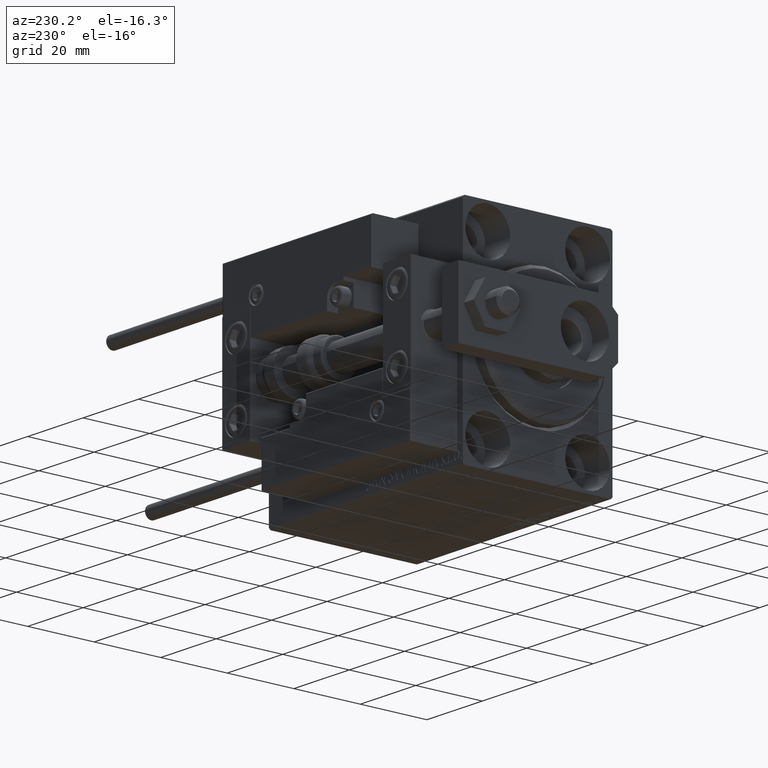
[diagram: clean part render]
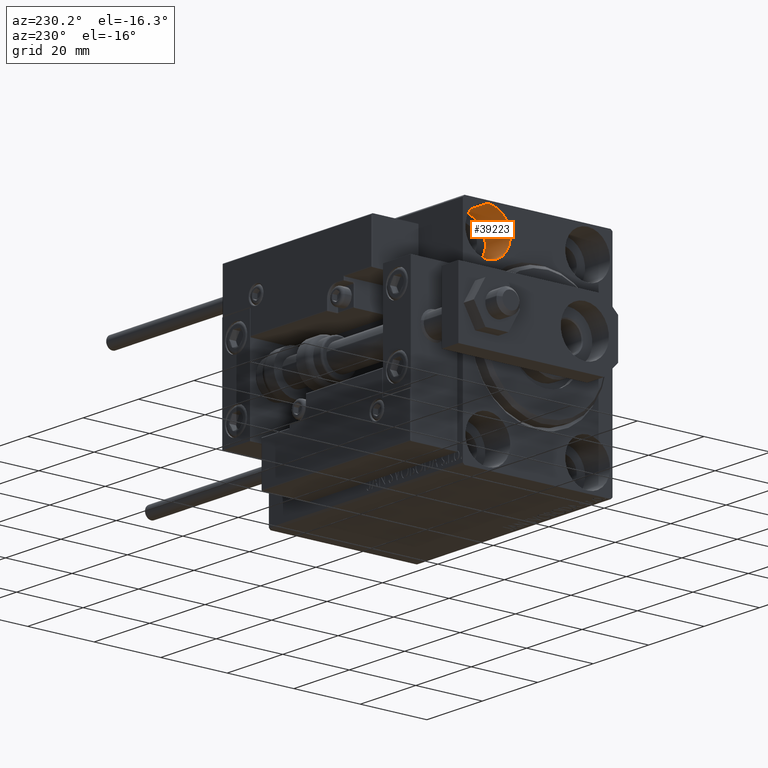
[diagram: same view with one face highlighted and labeled with its STEP entity id]
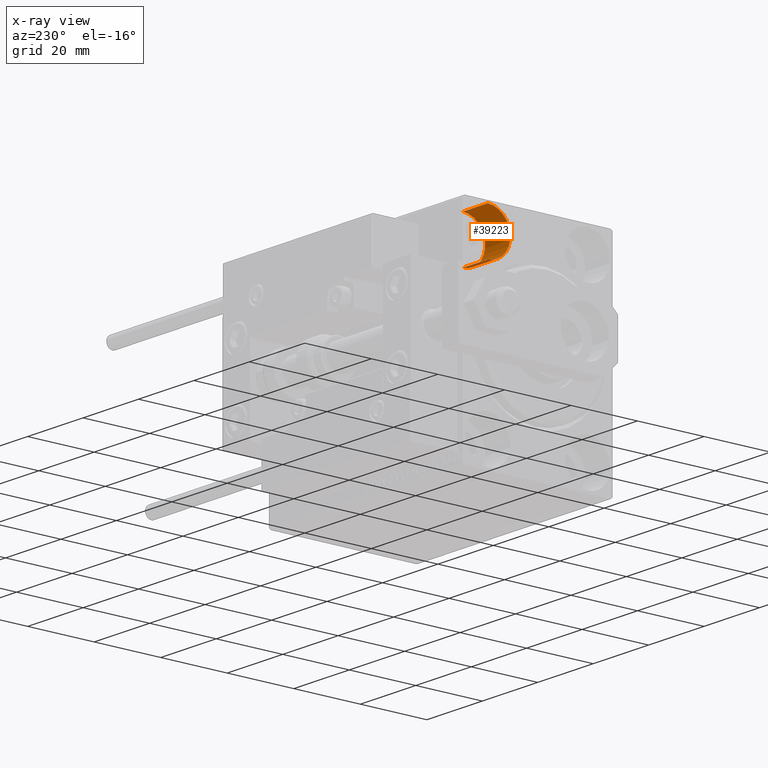
[diagram: x-ray of the same camera — body ghosted, the highlighted face saturated]
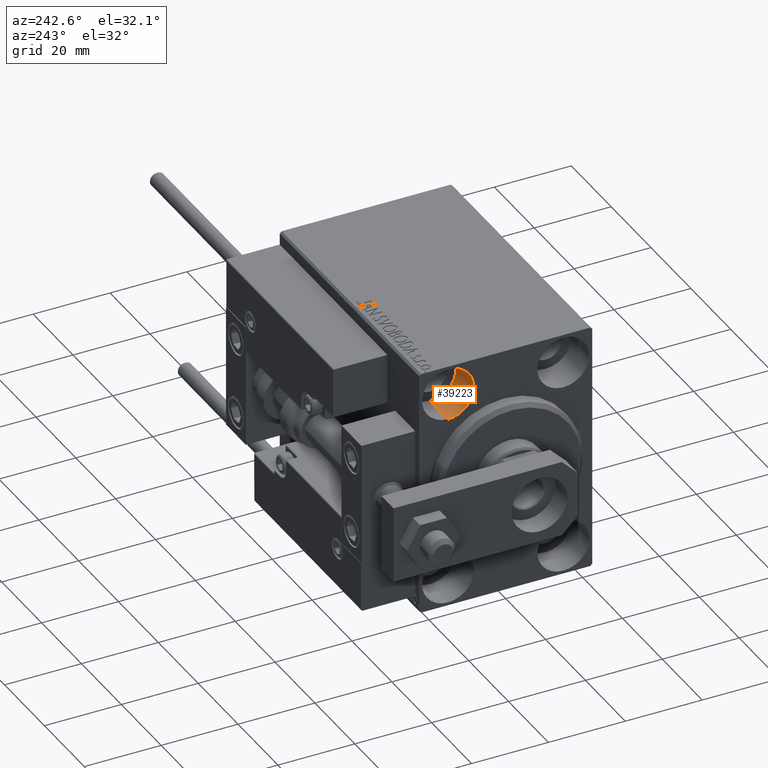
[diagram: same view with one face highlighted and labeled with its STEP entity id]
A machine part, auxiliary view. The second image highlights one B-rep face of the part: STEP entity #39223.
The next image is the same camera in x-ray: the body ghosted, the highlighted face saturated — about 2% of this face is hidden behind the body in this view.
A second angle (auxiliary view) of the same face is appended — the face is thin or edge-on in the first view.
In plain terms, the highlighted cylindrical surface (edge-blend (fillet) strip) has radius 6.75 mm, axis along (-1, -0, -0).
Its self-contained STEP definition (entity closure, byte-faithful):
#96 = DIRECTION ( 'NONE',  ( -1.000000000000000000, -0.000000000000000000, -0.000000000000000000 ) ) ;
#756 = CARTESIAN_POINT ( 'NONE',  ( 0.000000000000000000, 15.00000000000000355, 18.25000000000000355 ) ) ;
#1282 = EDGE_CURVE ( 'NONE', #44752, #24791, #27206, .T. ) ;
#1315 = EDGE_CURVE ( 'NONE', #31585, #44752, #20637, .T. ) ;
#4052 = AXIS2_PLACEMENT_3D ( 'NONE', #29662, #10417, #48947 ) ;
#7648 = ORIENTED_EDGE ( 'NONE', *, *, #26086, .T. ) ;
#9435 = AXIS2_PLACEMENT_3D ( 'NONE', #25455, #44479, #17591 ) ;
#10417 = DIRECTION ( 'NONE',  ( -1.000000000000000000, -0.000000000000000000, -0.000000000000000000 ) ) ;
#11104 = DIRECTION ( 'NONE',  ( -1.000000000000000000, -0.000000000000000000, -0.000000000000000000 ) ) ;
#11741 = DIRECTION ( 'NONE',  ( 0.000000000000000000, 0.000000000000000000, 1.000000000000000000 ) ) ;
#15559 = CARTESIAN_POINT ( 'NONE',  ( 9.000000000000000000, 15.00000000000000355, 25.00000000000000000 ) ) ;
#17591 = DIRECTION ( 'NONE',  ( 0.000000000000000000, 0.000000000000000000, 1.000000000000000000 ) ) ;
#18023 = FACE_OUTER_BOUND ( 'NONE', #46055, .T. ) ;
#20360 = CARTESIAN_POINT ( 'NONE',  ( 9.000000000000000000, 15.00000000000000355, 18.25000000000000355 ) ) ;
#20637 = CIRCLE ( 'NONE', #49107, 6.749999999999999112 ) ;
#21760 = VECTOR ( 'NONE', #11104, 1000.000000000000000 ) ;
#22309 = CYLINDRICAL_SURFACE ( 'NONE', #4052, 6.749999999999999112 ) ;
#23807 = CARTESIAN_POINT ( 'NONE',  ( 9.000000000000000000, 15.00000000000000355, 31.75000000000000000 ) ) ;
#24791 = VERTEX_POINT ( 'NONE', #40471 ) ;
#25455 = CARTESIAN_POINT ( 'NONE',  ( 0.000000000000000000, 15.00000000000000355, 25.00000000000000000 ) ) ;
#26086 = EDGE_CURVE ( 'NONE', #48757, #24791, #28028, .T. ) ;
#27206 = LINE ( 'NONE', #37873, #42608 ) ;
#28028 = CIRCLE ( 'NONE', #9435, 6.749999999999999112 ) ;
#28113 = ORIENTED_EDGE ( 'NONE', *, *, #35786, .T. ) ;
#29662 = CARTESIAN_POINT ( 'NONE',  ( 9.000000000000000000, 15.00000000000000355, 25.00000000000000000 ) ) ;
#31009 = DIRECTION ( 'NONE',  ( -1.000000000000000000, 0.000000000000000000, 0.000000000000000000 ) ) ;
#31014 = ORIENTED_EDGE ( 'NONE', *, *, #1282, .F. ) ;
#31585 = VERTEX_POINT ( 'NONE', #20360 ) ;
#31767 = ORIENTED_EDGE ( 'NONE', *, *, #1315, .F. ) ;
#35786 = EDGE_CURVE ( 'NONE', #31585, #48757, #49888, .T. ) ;
#37873 = CARTESIAN_POINT ( 'NONE',  ( 9.000000000000000000, 15.00000000000000355, 31.75000000000000000 ) ) ;
#38224 = CARTESIAN_POINT ( 'NONE',  ( 9.000000000000000000, 15.00000000000000355, 18.25000000000000355 ) ) ;
#39223 = ADVANCED_FACE ( 'NONE', ( #18023 ), #22309, .F. ) ;
#40471 = CARTESIAN_POINT ( 'NONE',  ( 0.000000000000000000, 15.00000000000000355, 31.75000000000000000 ) ) ;
#42608 = VECTOR ( 'NONE', #96, 1000.000000000000000 ) ;
#44479 = DIRECTION ( 'NONE',  ( -1.000000000000000000, 0.000000000000000000, 0.000000000000000000 ) ) ;
#44752 = VERTEX_POINT ( 'NONE', #23807 ) ;
#46055 = EDGE_LOOP ( 'NONE', ( #31767, #28113, #7648, #31014 ) ) ;
#48757 = VERTEX_POINT ( 'NONE', #756 ) ;
#48947 = DIRECTION ( 'NONE',  ( 0.000000000000000000, 0.000000000000000000, 1.000000000000000000 ) ) ;
#49107 = AXIS2_PLACEMENT_3D ( 'NONE', #15559, #31009, #11741 ) ;
#49888 = LINE ( 'NONE', #38224, #21760 ) ;